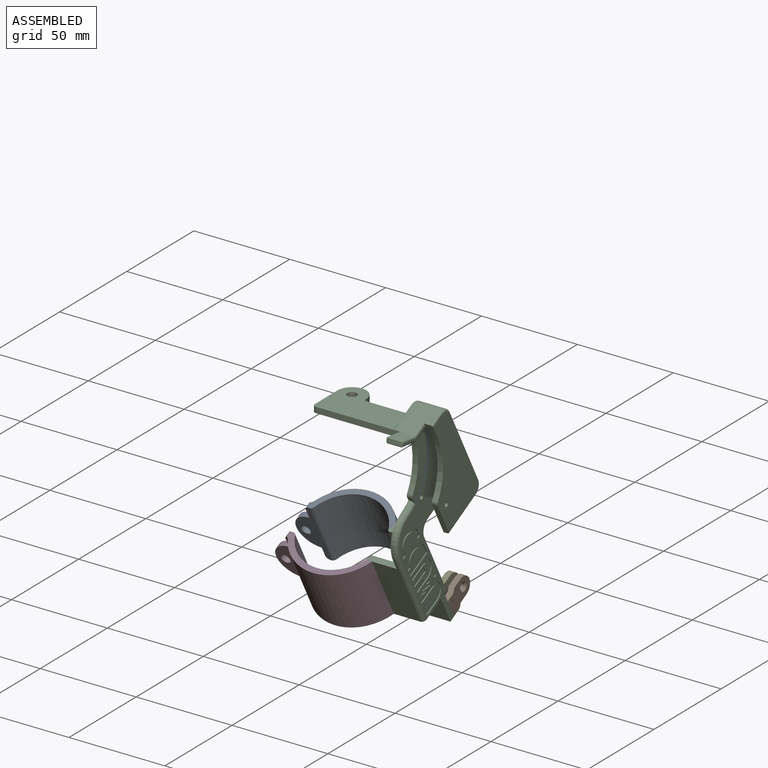
[diagram: assembled view]
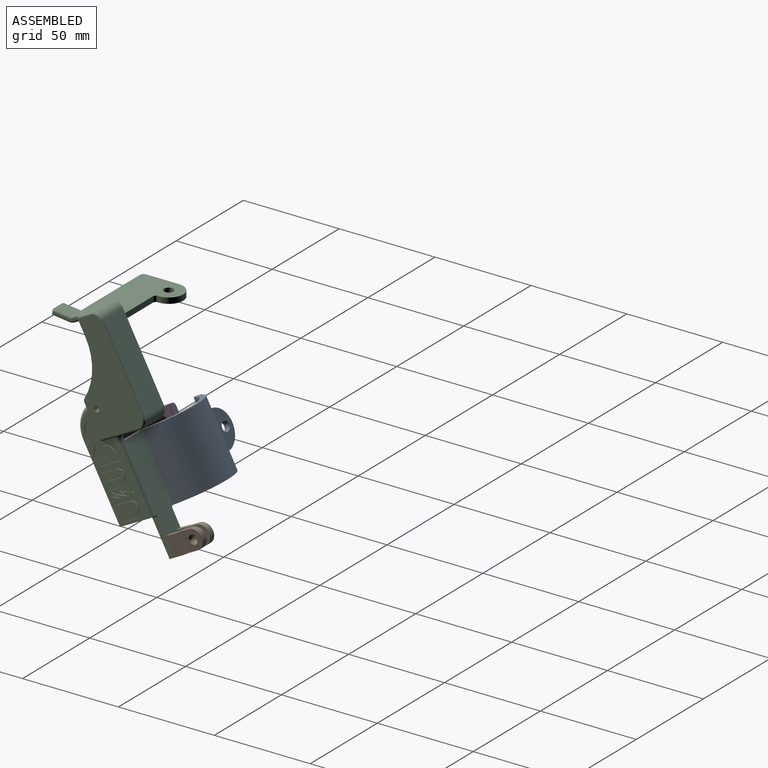
[diagram: assembled view, second angle]
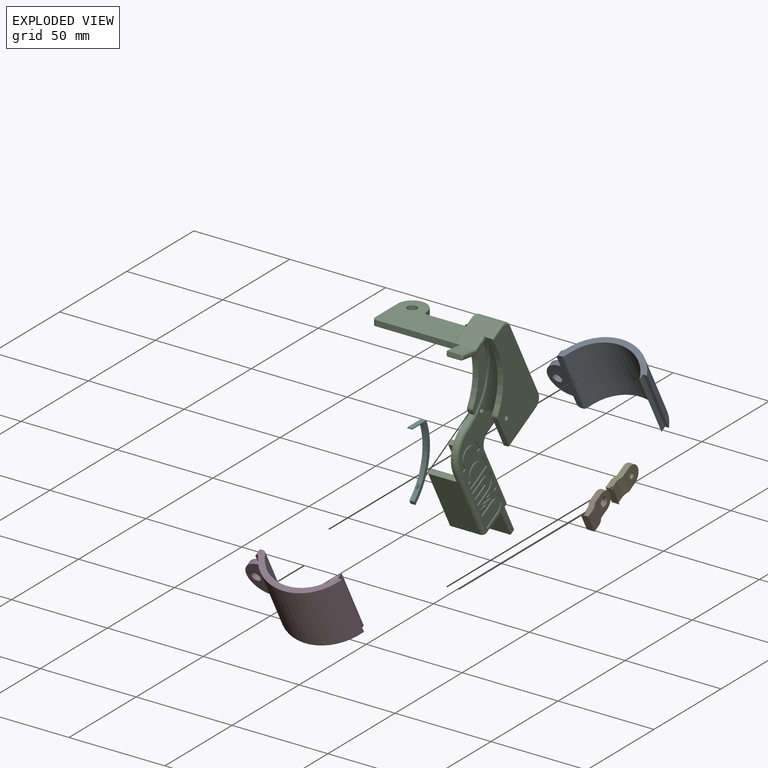
[diagram: exploded view]
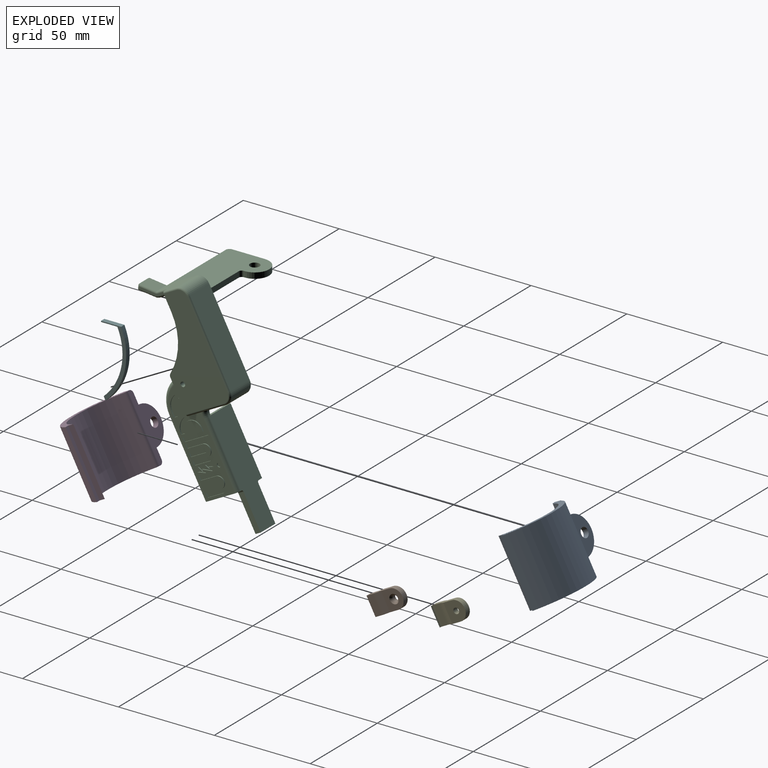
[diagram: exploded view, second angle]
ASSEMBLY  parts=6 mates=5
PART A: 16 faces, bbox 55.6x31.4x38.9 mm
  f0: plane 6.26x5.23mm, normal (-1,0,0), area 16.5mm2, adj f2,f4,f10,f15
  f1: cylinder r=21mm len=39.12mm, axis (0,0.47,-0.88), area 1763.8mm2, adj f7,f8,f9,f13
  f2: plane 30.9x16.43mm, normal (0,-0.88,-0.47), area 228.5mm2, adj f0,f3,f8,f9,f10,f11,f13,f14
  f3: plane 6.26x5.23mm, normal (-1,0,0), area 16.5mm2, adj f2,f4,f10,f14
  f4: plane 30.13x16.02mm, normal (0,0.88,0.47), area 162.4mm2, adj f0,f3,f10,f11,f12,f14,f15
  f5: cylinder r=24mm len=43.11mm, axis (0,0.47,-0.88), area 1875mm2, adj f6,f8,f9,f12
  f6: plane 30.9x16.43mm, normal (0,-0.88,-0.47), area 70.6mm2, adj f5,f7,f8,f9
  f7: plane 32.31x19.08mm, normal (1,0,0), area 105mm2, adj f1,f6,f8,f9
  f8: plane 43.64x15.01mm, normal (0,-0.47,0.88), area 159.4mm2, adj f1,f2,f5,f6,f7,f12,f13,f15
  f9: plane 43.64x15.01mm, normal (0,0.47,-0.88), area 159.4mm2, adj f1,f2,f5,f6,f7,f12,f13,f14
  f10: cylinder r=10mm len=19.07mm, axis (0,0.88,0.47), area 94.2mm2, adj f0,f2,f3,f4
  f11: cylinder r=2.5mm len=5.82mm, axis (0,0.88,0.47), area 47.1mm2, adj f2,f4
  f12: cylinder r=2mm len=31.41mm, axis (0,0.47,-0.88), area 76mm2, adj f4,f5,f8,f9,f14,f15
  f13: cylinder r=2mm len=31.47mm, axis (0,0.47,-0.88), area 81.8mm2, adj f1,f2,f8,f9
  f14: cylinder r=2mm len=3.97mm, axis (0,0.88,0.47), area 9.6mm2, adj f2,f3,f4,f9,f12
  f15: cylinder r=2mm len=3.97mm, axis (0,-0.88,-0.47), area 9.6mm2, adj f0,f2,f4,f8,f12
PART B: 15 faces, bbox 4.3x18.5x15.3 mm
  f0: plane 11.76x11.76mm, normal (-1,0,0), area 82.2mm2, adj f1,f2,f9,f12,f13
  f1: plane 11.11x5.91mm, normal (0,-0.47,0.88), area 38mm2, adj f0,f3,f4,f5,f6,f7,f8,f9
  f2: plane 11.11x5.91mm, normal (0,0.47,-0.88), area 38mm2, adj f0,f3,f4,f5,f6,f7,f8,f9
  f3: plane 11.76x11.76mm, normal (1,0,0), area 71.2mm2, adj f1,f2,f4,f12,f14
  f4: plane 9.56x6.06mm, normal (0.9,0.38,0.2), area 17.2mm2, adj f1,f2,f3,f11
  f5: plane 10.64x8.1mm, normal (1,0,0), area 38.5mm2, adj f1,f2,f6,f11
  f6: plane 8.83x4.69mm, normal (0,-0.88,-0.47), area 40mm2, adj f1,f2,f5,f7
  f7: cylinder r=1mm len=9.3mm, axis (0,0.47,-0.88), area 15.7mm2, adj f1,f2,f6,f8
  f8: plane 10.17x7.21mm, normal (-1,0,0), area 28.5mm2, adj f1,f2,f7,f10
  f9: plane 9.56x6.06mm, normal (-0.9,-0.38,-0.2), area 17.2mm2, adj f0,f1,f2,f10
  f10: cylinder r=5mm len=9.85mm, axis (0,0.47,-0.88), area 22.5mm2, adj f1,f2,f8,f9
  f11: cylinder r=5mm len=9.85mm, axis (0,-0.47,0.88), area 22.5mm2, adj f1,f2,f4,f5
  f12: cylinder r=5mm len=9.41mm, axis (1,0,0), area 47.1mm2, adj f0,f1,f2,f3
  f13: cylinder r=1.5mm len=3mm, axis (1,0,0), area 19.8mm2, adj f0,f14
  f14: cone r=1.5mm half-angle=45deg, axis (1,0,0), area 15.6mm2, adj f3,f13
PART C: 162 faces, bbox 58.3x56x115.3 mm
  f0: plane 16.29x4.57mm, normal (1,0,0), area 16.9mm2, adj f1,f2,f73,f74,f75,f76,f78,f79
  f1: cylinder r=1mm len=6.7mm, axis (0,-0.88,-0.47), area 11.1mm2, adj f0,f15,f73,f150
  f2: cylinder r=1mm len=6.8mm, axis (0,-0.88,-0.47), area 11.3mm2, adj f0,f25,f74,f150
  f3: cylinder r=30mm len=5.51mm, axis (-1,0,0), area 6.8mm2, adj f7,f54,f67,f154
  f4: plane 44.7x26.5mm, normal (0,0,-1), area 840.7mm2, adj f7,f17,f18,f19,f20,f21,f22,f23
  f5: plane 2.65x2.45mm, normal (0,0.47,-0.88), area 7.4mm2, adj f52,f56,f57,f147
  f6: plane 101.18x38.5mm, normal (1,0,0), area 1160mm2, adj f10,f11,f12,f13,f14,f25,f33,f53
  f7: plane 101.77x42.5mm, normal (-1,0,0), area 1695.5mm2, adj f3,f4,f9,f18,f42,f43,f44,f45
  f8: plane 19.95x14mm, normal (0,0.47,-0.88), area 136.4mm2, adj f9,f14,f37,f40,f46,f149
  f9: cylinder r=1mm len=17.25mm, axis (0,-0.88,-0.47), area 29.8mm2, adj f7,f8,f42,f55,f64
  f10: plane 39.73x21.13mm, normal (0,-0.88,-0.47), area 450mm2, adj f6,f11,f12,f40
  f11: cylinder r=2mm len=10mm, axis (1,0,0), area 31.4mm2, adj f6,f10,f13,f40
  f12: cylinder r=2mm len=10mm, axis (1,0,0), area 31.4mm2, adj f6,f10,f25,f40
  f13: plane 10x6.71mm, normal (0,-0.47,0.88), area 76mm2, adj f6,f11,f14,f40
  f14: plane 12x2.65mm, normal (0,-0.88,-0.47), area 30.9mm2, adj f6,f8,f13,f40,f64
  f15: plane 14.01x13.26mm, normal (0,-0.47,0.88), area 175.8mm2, adj f1,f17,f36,f39,f44,f82,f150,f157
  f16: plane 42.04x26.5mm, normal (0,0,1), area 784.8mm2, adj f17,f18,f19,f20,f21,f22,f23,f50
  f17: plane 44.27x3.07mm, normal (0,-1,0), area 130mm2, adj f4,f15,f16,f23,f26,f31,f33,f72
  f18: plane 25.7x5mm, normal (0,1,0), area 78mm2, adj f4,f7,f16,f19,f70
  f19: cylinder r=1.5mm len=3mm, axis (0,0,-1), area 7.1mm2, adj f4,f16,f18,f20
  f20: plane 3x0.5mm, normal (1,0,0), area 1.5mm2, adj f4,f16,f19,f21
  f21: cylinder r=7.5mm len=15mm, axis (0,0,-1), area 70.7mm2, adj f4,f16,f20,f22
  f22: plane 17x3mm, normal (-1,0,0), area 51mm2, adj f4,f16,f21,f23
  f23: cylinder r=2mm len=3mm, axis (0,0,-1), area 9.4mm2, adj f4,f16,f17,f22
  f24: plane 1.5x0.74mm, normal (0,0,-1), area 0.3mm2, adj f33,f67,f152
  f25: plane 13.04x10mm, normal (0,0.47,-0.88), area 131.2mm2, adj f2,f6,f12,f32,f33,f40,f150
  f26: plane 8.81x2.05mm, normal (-1,0,0), area 8.8mm2, adj f17,f82,f83,f85,f87,f88
  f27: plane 9.06x6.7mm, normal (0,-0.12,-0.99), area 61.2mm2, adj f31,f35,f80,f87
  f28: plane 7.91x0.81mm, normal (0,0.24,-0.97), area 6.5mm2, adj f31,f32,f33,f76
  f29: plane 8.79x6.7mm, normal (0,0.12,0.99), area 59.3mm2, adj f34,f36,f75,f83
  f30: plane 6.7x1.99mm, normal (0,-0.99,0.12), area 13.4mm2, adj f34,f35,f79,f85
  f31: cylinder r=2mm len=8.02mm, axis (-1,0,0), area 5.4mm2, adj f17,f27,f28,f33,f78,f88
  f32: cylinder r=2mm len=7.75mm, axis (-1,0,0), area 3.8mm2, adj f25,f28,f33,f74
  f33: cylinder r=0.5mm len=20.5mm, axis (0,1,0), area 15.1mm2, adj f4,f6,f17,f24,f25,f28,f31,f32
  f34: cylinder r=0.5mm len=6.7mm, axis (-1,0,0), area 5.3mm2, adj f29,f30,f77,f84
  f35: cylinder r=0.5mm len=6.7mm, axis (-1,0,0), area 5.3mm2, adj f27,f30,f81,f86
  f36: cylinder r=1mm len=6.7mm, axis (-1,0,0), area 4.1mm2, adj f15,f29,f73,f82
  f37: cylinder r=5mm len=14mm, axis (1,0,0), area 110mm2, adj f8,f38,f42,f47
  f38: plane 39.73x21.13mm, normal (0,0.88,0.47), area 630mm2, adj f37,f39,f43,f48
  f39: cylinder r=5mm len=14mm, axis (1,0,0), area 110mm2, adj f15,f38,f45,f49
  f40: plane 56.76x30.78mm, normal (-1,0,0), area 869.7mm2, adj f8,f10,f11,f12,f13,f14,f25,f148
  f41: plane 57.87x33.71mm, normal (1,0,0), area 993.9mm2, adj f46,f47,f48,f49,f148,f149,f150,f157
  f42: torus R=4mm, axis (1,0,0), area 11.4mm2, adj f7,f9,f37,f43
  f43: cylinder r=1mm len=40.2mm, axis (0,0.47,-0.88), area 70.7mm2, adj f7,f38,f42,f45
  f44: cylinder r=1mm len=13.72mm, axis (0,-0.88,-0.47), area 19.6mm2, adj f7,f15,f45,f71,f72
  f45: torus R=4mm, axis (1,0,0), area 11.4mm2, adj f7,f39,f43,f44
  f46: cylinder r=1mm len=20.42mm, axis (0,0.88,0.47), area 35.5mm2, adj f8,f41,f47,f149
  f47: torus R=4mm, axis (1,0,0), area 11.4mm2, adj f37,f41,f46,f48
  f48: cylinder r=1mm len=40.2mm, axis (0,-0.47,0.88), area 70.7mm2, adj f38,f41,f47,f49
  f49: torus R=4mm, axis (1,0,0), area 11.4mm2, adj f39,f41,f48,f157
  f50: cylinder r=2.5mm len=5mm, axis (0,0,1), area 47.1mm2, adj f4,f16
  f51: plane 35.77x19.02mm, normal (0,-0.88,-0.47), area 562mm2, adj f7,f53,f54,f59,f61,f65
  f52: plane 48.64x25.86mm, normal (0,0.88,0.47), area 777mm2, adj f5,f7,f53,f55,f57,f58,f62,f143
  f53: plane 17.9x17.66mm, normal (0,0.47,-0.88), area 103.1mm2, adj f6,f7,f51,f52,f56,f59,f60,f62
  f54: cylinder r=15mm len=20.13mm, axis (-1,0,0), area 23.2mm2, adj f3,f7,f51,f66
  f55: torus R=6mm, axis (0,-0.88,-0.47), area 8.6mm2, adj f7,f9,f52,f63
  f56: plane 48.56x25.82mm, normal (0,-0.88,-0.47), area 672mm2, adj f5,f53,f57,f58,f69,f143,f144,f145
  f57: plane 32.31x19.08mm, normal (-1,0,0), area 105mm2, adj f5,f52,f56,f58
  f58: plane 14.9x4.41mm, normal (0,-0.47,0.88), area 45.6mm2, adj f7,f52,f56,f57,f69
  f59: plane 32.31x19.08mm, normal (-1,0,0), area 105mm2, adj f51,f53,f60,f61
  f60: plane 30.9x16.43mm, normal (0,0.88,0.47), area 451.5mm2, adj f53,f59,f61,f68
  f61: plane 14.9x4.41mm, normal (0,-0.47,0.88), area 45.6mm2, adj f7,f51,f59,f60,f68
  f62: cylinder r=2mm len=31.84mm, axis (0,0.47,-0.88), area 110mm2, adj f6,f52,f53,f63
  f63: torus R=7mm, axis (-1,0,0), area 28.3mm2, adj f6,f55,f62,f64
  f64: cylinder r=2mm len=11mm, axis (0,0.88,0.47), area 35.8mm2, adj f6,f9,f14,f63
  f65: cylinder r=2mm len=36.71mm, axis (0,0.47,-0.88), area 127.3mm2, adj f6,f51,f53,f66
  f66: torus R=13mm, axis (-1,0,0), area 69.4mm2, adj f6,f54,f65,f67
  f67: torus R=32mm, axis (-1,0,0), area 142.8mm2, adj f3,f6,f24,f33,f66,f152
  f68: cylinder r=2mm len=31.84mm, axis (0,-0.47,0.88), area 110mm2, adj f7,f53,f60,f61
  f69: cylinder r=2mm len=31.84mm, axis (0,0.47,-0.88), area 110mm2, adj f7,f53,f56,f58
  f70: cylinder r=2mm len=11.11mm, axis (0,1,0), area 34.9mm2, adj f7,f16,f18,f71
  f71: bspline ~7.74x2.73mm, area 12.5mm2, adj f16,f44,f70,f72
  f72: bspline ~1.16x0.87mm, area 0.5mm2, adj f17,f44,f71
  f73: torus R=2mm, axis (-1,0,0), area 1.3mm2, adj f0,f1,f36,f75
  f74: torus R=1mm, axis (-1,0,0), area 0.6mm2, adj f0,f2,f32,f76
  f75: cylinder r=1mm len=8.91mm, axis (0,-0.99,0.12), area 13.6mm2, adj f0,f29,f73,f77
  f76: cylinder r=1mm len=1.17mm, axis (0,0.97,0.24), area 1.3mm2, adj f0,f28,f74,f78
  f77: bspline ~1.11x1.05mm, area 0.8mm2, adj f34,f75,f79
  f78: torus R=1mm, axis (-1,0,0), area 0.9mm2, adj f0,f31,f76,f80
  f79: cylinder r=1mm len=2.11mm, axis (0,-0.12,-0.99), area 2.6mm2, adj f0,f30,f77,f81
  f80: cylinder r=1mm len=9.18mm, axis (0,0.99,-0.12), area 14.1mm2, adj f0,f27,f78,f81
  f81: bspline ~1.11x1.05mm, area 0.8mm2, adj f35,f79,f80
  f82: torus R=2mm, axis (1,0,0), area 0.6mm2, adj f15,f17,f26,f36,f83
  f83: cylinder r=1mm len=8.91mm, axis (0,-0.99,0.12), area 13.6mm2, adj f26,f29,f82,f84
  f84: bspline ~1.19x1.11mm, area 0.8mm2, adj f34,f83,f85
  f85: cylinder r=1mm len=2.11mm, axis (0,-0.12,-0.99), area 2.6mm2, adj f26,f30,f84,f86
  f86: bspline ~1.19x1.11mm, area 0.8mm2, adj f35,f85,f87
  f87: cylinder r=1mm len=9.18mm, axis (0,0.99,-0.12), area 14.1mm2, adj f26,f27,f86,f88
  f88: torus R=1mm, axis (1,0,0), area 0.5mm2, adj f17,f26,f31,f87
  f89: plane 1.77x0.94mm, normal (0,0.88,0.47), area 1mm2, adj f6,f90,f96,f97
  f90: plane 7.95x4.23mm, normal (0,-0.47,0.88), area 4.5mm2, adj f6,f89,f91,f97
  f91: cylinder r=5mm len=9.41mm, axis (1,0,0), area 7.9mm2, adj f6,f90,f92,f97
  f92: plane 7.95x4.23mm, normal (0,0.47,-0.88), area 4.5mm2, adj f6,f91,f93,f97
  f93: plane 1.77x0.94mm, normal (0,0.88,0.47), area 1mm2, adj f6,f92,f94,f97
  f94: plane 7.95x4.23mm, normal (0,-0.47,0.88), area 4.5mm2, adj f6,f93,f95,f97
  f95: cylinder r=3mm len=5.65mm, axis (1,0,0), area 4.7mm2, adj f6,f94,f96,f97
  f96: plane 7.95x4.23mm, normal (0,0.47,-0.88), area 4.5mm2, adj f6,f89,f95,f97
  f97: plane 15.29x13.64mm, normal (1,0,0), area 61.1mm2, adj f89,f90,f91,f92,f93,f94,f95,f96
  f98: plane 2.86x0.87mm, normal (0,-0.29,0.96), area 1.5mm2, adj f6,f99,f107,f108
  f99: plane 4.57x0.5mm, normal (0,0.1,-1), area 2.3mm2, adj f6,f98,f100,f108
  f100: plane 2.18x1.27mm, normal (0,0.5,0.86), area 1.3mm2, adj f6,f99,f101,f108
  f101: plane 5.93x0.72mm, normal (0,0.12,-0.99), area 3mm2, adj f6,f100,f102,f108
  f102: plane 2.54x1.48mm, normal (0,0.5,0.86), area 1.5mm2, adj f6,f101,f103,f108
  f103: plane 2.92x0.99mm, normal (0,0.32,-0.95), area 1.5mm2, adj f6,f102,f104,f108
  f104: plane 4.72x0.81mm, normal (0,-0.17,0.99), area 2.4mm2, adj f6,f103,f105,f108
  f105: plane 2.03x1.19mm, normal (0,-0.5,-0.86), area 1.2mm2, adj f6,f104,f106,f108
  f106: plane 5.52x0.67mm, normal (0,-0.12,0.99), area 2.8mm2, adj f6,f105,f107,f108
  f107: plane 2.36x1.38mm, normal (0,-0.5,-0.86), area 1.4mm2, adj f6,f98,f106,f108
  f108: plane 8.71x4.92mm, normal (1,0,0), area 10.1mm2, adj f98,f99,f100,f101,f102,f103,f104,f105
  f109: cylinder r=5mm len=9.41mm, axis (1,0,0), area 7.9mm2, adj f6,f110,f116,f117
  f110: plane 1.32x0.7mm, normal (0,0.88,0.47), area 0.7mm2, adj f6,f109,f111,f117
  f111: plane 10.6x5.63mm, normal (0,0.47,-0.88), area 6mm2, adj f6,f110,f112,f117
  f112: plane 1.77x0.94mm, normal (0,0.88,0.47), area 1mm2, adj f6,f111,f113,f117
  f113: plane 12.36x6.57mm, normal (0,-0.47,0.88), area 7mm2, adj f6,f112,f114,f117
  f114: plane 3.09x1.64mm, normal (0,-0.88,-0.47), area 1.7mm2, adj f6,f113,f115,f117
  f115: cylinder r=7mm len=13.18mm, axis (1,0,0), area 11mm2, adj f6,f114,f116,f117
  f116: plane 1.77x0.94mm, normal (0,-0.47,0.88), area 1mm2, adj f6,f109,f115,f117
  f117: plane 14.82x13.38mm, normal (1,0,0), area 68.7mm2, adj f109,f110,f111,f112,f113,f114,f115,f116
  f118: plane 1.77x0.94mm, normal (0,-0.88,-0.47), area 1mm2, adj f6,f119,f121,f122
  f119: plane 7.95x4.23mm, normal (0,0.47,-0.88), area 4.5mm2, adj f6,f118,f120,f122
  f120: plane 1.77x0.94mm, normal (0,0.88,0.47), area 1mm2, adj f6,f119,f121,f122
  f121: plane 7.95x4.23mm, normal (0,-0.47,0.88), area 4.5mm2, adj f6,f118,f120,f122
  f122: plane 8.89x5.99mm, normal (1,0,0), area 18mm2, adj f118,f119,f120,f121
  f123: plane 7.95x4.23mm, normal (0,-0.47,0.88), area 4.5mm2, adj f6,f124,f130,f131
  f124: cylinder r=5mm len=9.41mm, axis (1,0,0), area 7.9mm2, adj f6,f123,f125,f131
  f125: plane 7.95x4.23mm, normal (0,0.47,-0.88), area 4.5mm2, adj f6,f124,f126,f131
  f126: plane 1.77x0.94mm, normal (0,0.88,0.47), area 1mm2, adj f6,f125,f127,f131
  f127: plane 7.95x4.23mm, normal (0,-0.47,0.88), area 4.5mm2, adj f6,f126,f128,f131
  f128: cylinder r=3mm len=5.65mm, axis (1,0,0), area 4.7mm2, adj f6,f127,f129,f131
  f129: plane 7.95x4.23mm, normal (0,0.47,-0.88), area 4.5mm2, adj f6,f128,f130,f131
  f130: plane 1.77x0.94mm, normal (0,0.88,0.47), area 1mm2, adj f6,f123,f129,f131
  f131: plane 15.29x13.64mm, normal (1,0,0), area 61.1mm2, adj f123,f124,f125,f126,f127,f128,f129,f130
  f132: cylinder r=1mm len=2mm, axis (1,0,0), area 3.1mm2, adj f6,f133
  f133: plane 2x2mm, normal (1,0,0), area 3.1mm2, adj f132
  f134: plane 2.21x1.17mm, normal (0,-0.88,-0.47), area 1.3mm2, adj f6,f135,f141,f142
  f135: cylinder r=7mm len=13.18mm, axis (1,0,0), area 11mm2, adj f6,f134,f136,f142
  f136: plane 2.21x1.17mm, normal (0,0.88,0.47), area 1.3mm2, adj f6,f135,f137,f142
  f137: plane 1.77x0.94mm, normal (0,-0.47,0.88), area 1mm2, adj f6,f136,f138,f142
  f138: plane 2.21x1.17mm, normal (0,-0.88,-0.47), area 1.3mm2, adj f6,f137,f139,f142
  f139: cylinder r=5mm len=9.41mm, axis (1,0,0), area 7.9mm2, adj f6,f138,f140,f142
  f140: plane 2.21x1.17mm, normal (0,0.88,0.47), area 1.3mm2, adj f6,f139,f141,f142
  f141: plane 1.77x0.94mm, normal (0,-0.47,0.88), area 1mm2, adj f6,f134,f140,f142
  f142: plane 14.35x12.49mm, normal (1,0,0), area 47.7mm2, adj f134,f135,f136,f137,f138,f139,f140,f141
  f143: plane 18.18x11.57mm, normal (1,0,0), area 57mm2, adj f52,f56,f144,f146
  f144: plane 11x2.65mm, normal (0,0.47,-0.88), area 33mm2, adj f52,f56,f143,f145
  f145: plane 18.18x11.57mm, normal (-1,0,0), area 57mm2, adj f52,f56,f144,f147
  f146: cylinder r=1mm len=3.12mm, axis (0,-0.88,-0.47), area 4.7mm2, adj f52,f53,f56,f143
  f147: cylinder r=1mm len=3.12mm, axis (0,-0.88,-0.47), area 4.7mm2, adj f5,f52,f56,f145
  f148: cylinder r=30mm len=29.04mm, axis (1,0,0), area 91mm2, adj f40,f41,f150,f159
  f149: plane 16.24x8.63mm, normal (0,-0.88,-0.47), area 55mm2, adj f8,f40,f41,f46,f159
  f150: plane 8.39x5.3mm, normal (0,-0.88,-0.47), area 32.6mm2, adj f0,f1,f2,f15,f25,f40,f41,f148
  f151: plane 8.54x0.5mm, normal (0,0,1), area 4.3mm2, adj f33,f152,f153,f156
  f152: cylinder r=30mm len=34.62mm, axis (-1,0,0), area 75.6mm2, adj f24,f67,f151,f154,f156
  f153: plane 3x1.91mm, normal (0,-0.88,-0.47), area 6.5mm2, adj f4,f7,f151,f155,f156
  f154: plane 3x1.73mm, normal (0,-0.88,-0.47), area 5.9mm2, adj f3,f7,f152,f156,f158
  f155: cylinder r=30mm len=29.04mm, axis (-1,0,0), area 91mm2, adj f7,f153,f156,f158
  f156: plane 34.62x11.24mm, normal (1,0,0), area 211.7mm2, adj f151,f152,f153,f154,f155,f158
  f157: cylinder r=1mm len=7.18mm, axis (0,-0.88,-0.47), area 11.9mm2, adj f15,f41,f49,f150
  f158: cylinder r=2mm len=3mm, axis (-1,0,0), area 6.1mm2, adj f7,f154,f155,f156
  f159: cylinder r=2mm len=3mm, axis (1,0,0), area 6.1mm2, adj f40,f41,f148,f149
  f160: cylinder r=1.25mm len=3mm, axis (1,0,0), area 23.6mm2, adj f40,f41
  f161: cylinder r=1.25mm len=3mm, axis (1,0,0), area 23.6mm2, adj f6,f7
PART D: 16 faces, bbox 55.6x31.4x38.9 mm
  f0: plane 6.26x5.23mm, normal (-1,0,0), area 16.5mm2, adj f5,f7,f10,f15
  f1: cylinder r=21mm len=39.12mm, axis (0,0.47,-0.88), area 1763.8mm2, adj f2,f8,f9,f13
  f2: plane 32.31x19.08mm, normal (1,0,0), area 105mm2, adj f1,f3,f8,f9
  f3: plane 30.9x16.43mm, normal (0,0.88,0.47), area 70.6mm2, adj f2,f4,f8,f9
  f4: cylinder r=24mm len=43.11mm, axis (0,0.47,-0.88), area 1875mm2, adj f3,f8,f9,f12
  f5: plane 30.13x16.02mm, normal (0,-0.88,-0.47), area 162.4mm2, adj f0,f6,f10,f11,f12,f14,f15
  f6: plane 6.26x5.23mm, normal (-1,0,0), area 16.5mm2, adj f5,f7,f10,f14
  f7: plane 30.9x16.43mm, normal (0,0.88,0.47), area 228.5mm2, adj f0,f6,f8,f9,f10,f11,f13,f14
  f8: plane 43.64x15.01mm, normal (0,-0.47,0.88), area 159.4mm2, adj f1,f2,f3,f4,f7,f12,f13,f15
  f9: plane 43.64x15.01mm, normal (0,0.47,-0.88), area 159.4mm2, adj f1,f2,f3,f4,f7,f12,f13,f14
  f10: cylinder r=10mm len=19.07mm, axis (0,-0.88,-0.47), area 94.2mm2, adj f0,f5,f6,f7
  f11: cylinder r=2.5mm len=5.82mm, axis (0,-0.88,-0.47), area 47.1mm2, adj f5,f7
  f12: cylinder r=2mm len=31.41mm, axis (0,0.47,-0.88), area 76mm2, adj f4,f5,f8,f9,f14,f15
  f13: cylinder r=2mm len=31.47mm, axis (0,0.47,-0.88), area 81.8mm2, adj f1,f7,f8,f9
  f14: cylinder r=2mm len=3.97mm, axis (0,0.88,0.47), area 9.6mm2, adj f5,f6,f7,f9,f12
  f15: cylinder r=2mm len=3.97mm, axis (0,-0.88,-0.47), area 9.6mm2, adj f0,f5,f7,f8,f12
PART E: 14 faces, bbox 4.3x18.5x15.3 mm
  f0: plane 11.76x11.76mm, normal (1,0,0), area 82.2mm2, adj f1,f2,f6,f12,f13
  f1: plane 11.11x5.91mm, normal (0,-0.47,0.88), area 38mm2, adj f0,f3,f4,f5,f6,f7,f8,f9
  f2: plane 11.11x5.91mm, normal (0,0.47,-0.88), area 38mm2, adj f0,f3,f4,f5,f6,f7,f8,f9
  f3: plane 10.64x8.1mm, normal (-1,0,0), area 38.5mm2, adj f1,f2,f9,f10
  f4: plane 9.56x6.06mm, normal (-0.9,0.38,0.2), area 17.2mm2, adj f1,f2,f5,f10
  f5: plane 11.76x11.76mm, normal (-1,0,0), area 82.2mm2, adj f1,f2,f4,f12,f13
  f6: plane 9.56x6.06mm, normal (0.9,-0.38,-0.2), area 17.2mm2, adj f0,f1,f2,f11
  f7: plane 10.17x7.21mm, normal (1,0,0), area 28.5mm2, adj f1,f2,f8,f11
  f8: cylinder r=1mm len=9.3mm, axis (0,0.47,-0.88), area 15.7mm2, adj f1,f2,f7,f9
  f9: plane 8.83x4.69mm, normal (0,-0.88,-0.47), area 40mm2, adj f1,f2,f3,f8
  f10: cylinder r=5mm len=9.85mm, axis (0,-0.47,0.88), area 22.5mm2, adj f1,f2,f3,f4
  f11: cylinder r=5mm len=9.85mm, axis (0,0.47,-0.88), area 22.5mm2, adj f1,f2,f6,f7
  f12: cylinder r=5mm len=9.41mm, axis (1,0,0), area 47.1mm2, adj f0,f1,f2,f5
  f13: cylinder r=1.5mm len=3mm, axis (1,0,0), area 28.3mm2, adj f0,f5
PART F: 8 faces, bbox 2.5x13.2x36.9 mm
  f0: plane 10.51x2.5mm, normal (0,0,1), area 26.3mm2, adj f1,f5,f6,f7
  f1: plane 2.5x0.5mm, normal (0,-1,0), area 1.3mm2, adj f0,f2,f6,f7
  f2: plane 8.54x2.5mm, normal (0,0,-1), area 21.4mm2, adj f1,f3,f6,f7
  f3: cylinder r=30mm len=34.62mm, axis (1,0,0), area 94.5mm2, adj f2,f4,f6,f7
  f4: plane 2.5x1.82mm, normal (0,-0.88,-0.47), area 5.1mm2, adj f3,f5,f6,f7
  f5: cylinder r=32mm len=36.94mm, axis (1,0,0), area 101.2mm2, adj f0,f4,f6,f7
  f6: plane 36.94x13.24mm, normal (-1,0,0), area 83mm2, adj f0,f1,f2,f3,f4,f5
  f7: plane 36.94x13.24mm, normal (1,0,0), area 83mm2, adj f0,f1,f2,f3,f4,f5
PLACE A t=(22.71,-58.22,45.53)mm
PLACE B t=(22.71,-58.22,45.53)mm
PLACE C t=(22.71,-58.22,45.53)mm fixed
PLACE D rot(axis=(1,0,0),0deg) t=(22.71,-58.22,45.53)mm
PLACE E t=(22.71,-58.22,45.53)mm
PLACE F t=(22.71,-58.22,45.53)mm
MATE fastened C.f59 <-> D.f2  axis (-1,0,0) through (4.81,-46.11,-32.8)mm
MATE fastened F.f7 <-> C.f6  axis (1,0,0) through (22.71,-37.72,46.03)mm
MATE fastened C.f52 <-> E.f9  axis (0,0.88,0.47) through (8.26,-12.17,-57.23)mm
MATE fastened C.f57 <-> A.f7  axis (-1,0,0) through (4.81,-31.1,-24.82)mm
MATE fastened B.f6 <-> C.f52  axis (0,-0.88,-0.47) through (19.26,-12.17,-57.23)mm
